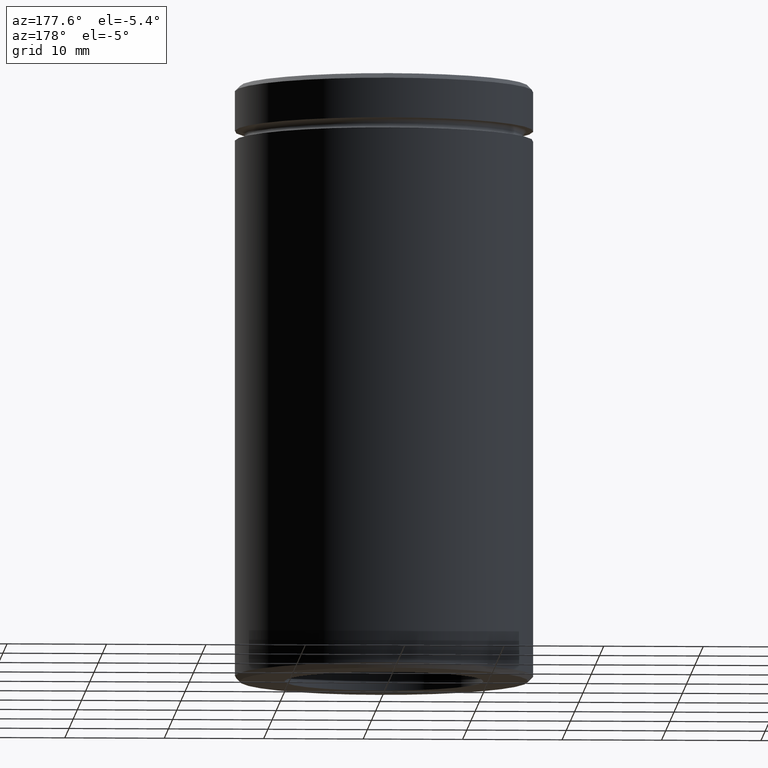
[diagram: clean part render]
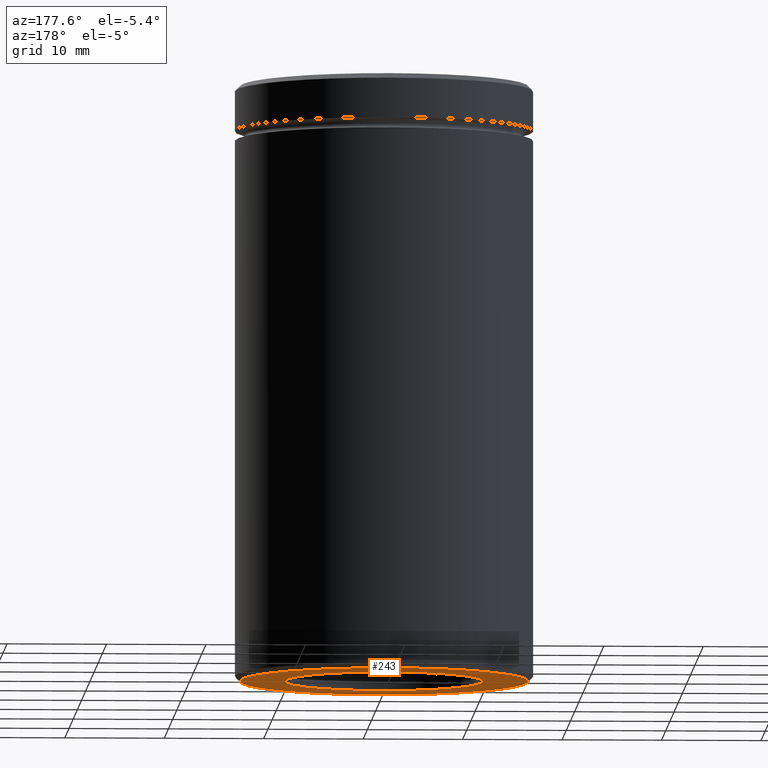
[diagram: same view with one face highlighted and labeled with its STEP entity id]
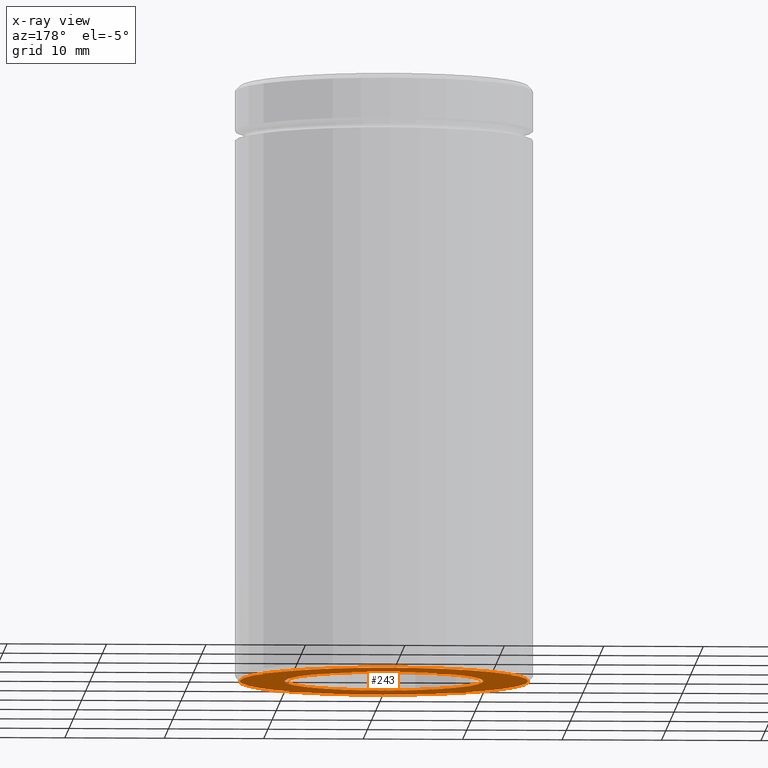
[diagram: x-ray of the same camera — body ghosted, the highlighted face saturated]
A machine part, auxiliary view. The second image highlights one B-rep face of the part: STEP entity #243.
The next image is the same camera in x-ray: the body ghosted, the highlighted face saturated — about 0% of this face is hidden behind the body in this view.
In plain terms, the highlighted planar face has unit normal (0, 0, -1).
Its self-contained STEP definition (entity closure, byte-faithful):
#30 = DIRECTION ( 'NONE',  ( 0.000000000000000000, 0.000000000000000000, -1.000000000000000000 ) ) ;
#33 = CIRCLE ( 'NONE', #134, 10.00000000000000000 ) ;
#57 = DIRECTION ( 'NONE',  ( -1.000000000000000000, 0.000000000000000000, 0.000000000000000000 ) ) ;
#58 = VERTEX_POINT ( 'NONE', #419 ) ;
#59 = EDGE_LOOP ( 'NONE', ( #224, #498 ) ) ;
#60 = CARTESIAN_POINT ( 'NONE',  ( 0.000000000000000000, 0.000000000000000000, -60.00000000000000000 ) ) ;
#62 = DIRECTION ( 'NONE',  ( -1.000000000000000000, 0.000000000000000000, 0.000000000000000000 ) ) ;
#68 = CARTESIAN_POINT ( 'NONE',  ( 0.000000000000000000, 0.000000000000000000, -60.00000000000000000 ) ) ;
#75 = DIRECTION ( 'NONE',  ( -1.000000000000000000, 0.000000000000000000, 0.000000000000000000 ) ) ;
#90 = VERTEX_POINT ( 'NONE', #373 ) ;
#106 = EDGE_CURVE ( 'NONE', #349, #58, #220, .T. ) ;
#127 = FACE_BOUND ( 'NONE', #183, .T. ) ;
#134 = AXIS2_PLACEMENT_3D ( 'NONE', #60, #442, #321 ) ;
#137 = CARTESIAN_POINT ( 'NONE',  ( 0.000000000000000000, 15.00000000000000000, -60.00000000000000000 ) ) ;
#140 = DIRECTION ( 'NONE',  ( 0.000000000000000000, 0.000000000000000000, -1.000000000000000000 ) ) ;
#148 = CARTESIAN_POINT ( 'NONE',  ( 0.000000000000000000, 0.000000000000000000, -60.00000000000000000 ) ) ;
#157 = VERTEX_POINT ( 'NONE', #327 ) ;
#163 = AXIS2_PLACEMENT_3D ( 'NONE', #68, #30, #75 ) ;
#180 = DIRECTION ( 'NONE',  ( -1.000000000000000000, 0.000000000000000000, -0.000000000000000000 ) ) ;
#183 = EDGE_LOOP ( 'NONE', ( #494, #258 ) ) ;
#187 = CARTESIAN_POINT ( 'NONE',  ( 0.000000000000000000, 0.000000000000000000, -60.00000000000000000 ) ) ;
#189 = FACE_OUTER_BOUND ( 'NONE', #59, .T. ) ;
#190 = CARTESIAN_POINT ( 'NONE',  ( -10.00000000000000000, 0.000000000000000000, -60.00000000000000000 ) ) ;
#220 = CIRCLE ( 'NONE', #163, 10.00000000000000000 ) ;
#224 = ORIENTED_EDGE ( 'NONE', *, *, #326, .T. ) ;
#225 = DIRECTION ( 'NONE',  ( 0.000000000000000000, 0.000000000000000000, -1.000000000000000000 ) ) ;
#243 = ADVANCED_FACE ( 'NONE', ( #189, #127 ), #312, .T. ) ;
#258 = ORIENTED_EDGE ( 'NONE', *, *, #432, .F. ) ;
#264 = CIRCLE ( 'NONE', #396, 14.49999999999999645 ) ;
#271 = DIRECTION ( 'NONE',  ( 0.000000000000000000, 0.000000000000000000, -1.000000000000000000 ) ) ;
#281 = AXIS2_PLACEMENT_3D ( 'NONE', #148, #140, #62 ) ;
#312 = PLANE ( 'NONE',  #460 ) ;
#321 = DIRECTION ( 'NONE',  ( -1.000000000000000000, 0.000000000000000000, 0.000000000000000000 ) ) ;
#326 = EDGE_CURVE ( 'NONE', #90, #157, #264, .T. ) ;
#327 = CARTESIAN_POINT ( 'NONE',  ( -14.49999999999999645, 1.806354028742345802E-15, -60.00000000000000000 ) ) ;
#349 = VERTEX_POINT ( 'NONE', #190 ) ;
#373 = CARTESIAN_POINT ( 'NONE',  ( 14.49999999999999645, 0.000000000000000000, -60.00000000000000000 ) ) ;
#390 = EDGE_CURVE ( 'NONE', #157, #90, #529, .T. ) ;
#396 = AXIS2_PLACEMENT_3D ( 'NONE', #187, #271, #57 ) ;
#419 = CARTESIAN_POINT ( 'NONE',  ( 10.00000000000000000, 1.224646799147353256E-15, -60.00000000000000000 ) ) ;
#432 = EDGE_CURVE ( 'NONE', #58, #349, #33, .T. ) ;
#442 = DIRECTION ( 'NONE',  ( 0.000000000000000000, 0.000000000000000000, -1.000000000000000000 ) ) ;
#460 = AXIS2_PLACEMENT_3D ( 'NONE', #137, #225, #180 ) ;
#494 = ORIENTED_EDGE ( 'NONE', *, *, #106, .F. ) ;
#498 = ORIENTED_EDGE ( 'NONE', *, *, #390, .T. ) ;
#529 = CIRCLE ( 'NONE', #281, 14.49999999999999645 ) ;